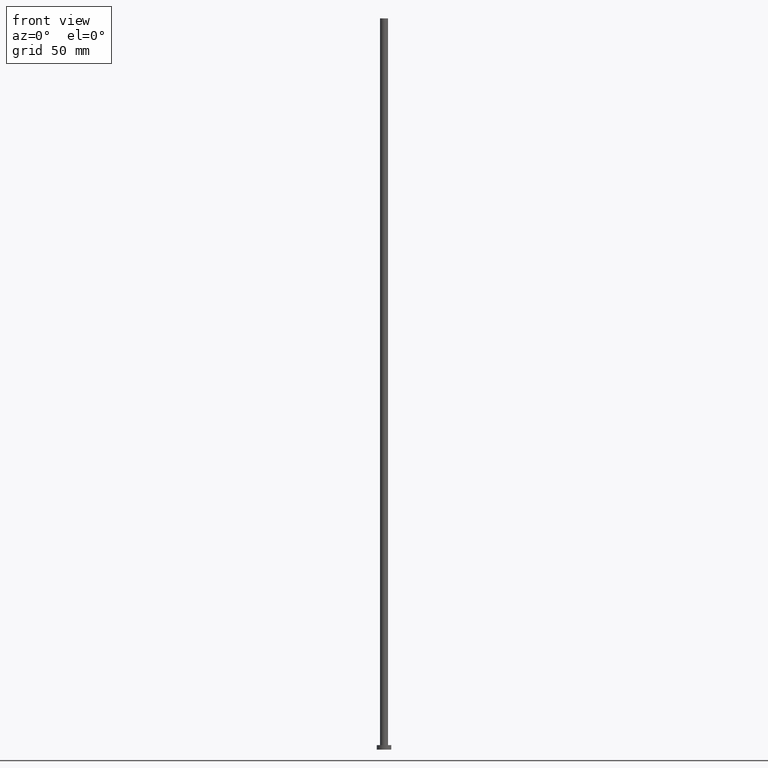
[diagram: clean part render]
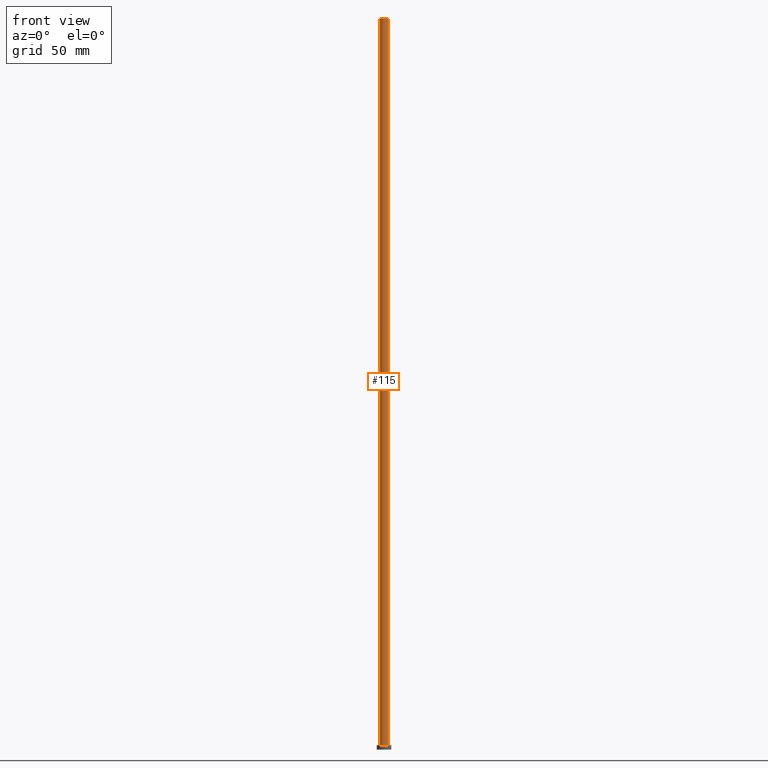
[diagram: same view with one face highlighted and labeled with its STEP entity id]
A machine part, front view. The second image highlights one B-rep face of the part: STEP entity #115.
In plain terms, the highlighted cylindrical surface (edge-blend (fillet) strip) has radius 2.75 mm, axis along (-0, -0, -1).
Its self-contained STEP definition (entity closure, byte-faithful):
#4 = DIRECTION ( 'NONE',  ( 0.000000000000000000, 0.000000000000000000, 1.000000000000000000 ) ) ;
#6 = VERTEX_POINT ( 'NONE', #249 ) ;
#11 = EDGE_CURVE ( 'NONE', #70, #6, #138, .T. ) ;
#14 = CARTESIAN_POINT ( 'NONE',  ( 2.750000000000000000, 3.367778697655220519E-16, 500.0000000000000000 ) ) ;
#15 = DIRECTION ( 'NONE',  ( -0.000000000000000000, -0.000000000000000000, -1.000000000000000000 ) ) ;
#21 = FACE_OUTER_BOUND ( 'NONE', #175, .T. ) ;
#26 = CARTESIAN_POINT ( 'NONE',  ( 0.000000000000000000, 0.000000000000000000, 500.0000000000000000 ) ) ;
#51 = ORIENTED_EDGE ( 'NONE', *, *, #188, .T. ) ;
#59 = LINE ( 'NONE', #14, #207 ) ;
#68 = EDGE_CURVE ( 'NONE', #230, #99, #160, .T. ) ;
#70 = VERTEX_POINT ( 'NONE', #195 ) ;
#71 = CARTESIAN_POINT ( 'NONE',  ( 2.750000000000000000, 3.367778697655220519E-16, 500.0000000000000000 ) ) ;
#87 = ORIENTED_EDGE ( 'NONE', *, *, #68, .F. ) ;
#92 = CARTESIAN_POINT ( 'NONE',  ( 0.000000000000000000, 0.000000000000000000, 500.0000000000000000 ) ) ;
#95 = ORIENTED_EDGE ( 'NONE', *, *, #199, .F. ) ;
#98 = DIRECTION ( 'NONE',  ( -0.000000000000000000, -0.000000000000000000, -1.000000000000000000 ) ) ;
#99 = VERTEX_POINT ( 'NONE', #71 ) ;
#115 = ADVANCED_FACE ( 'NONE', ( #21 ), #218, .T. ) ;
#119 = DIRECTION ( 'NONE',  ( -1.000000000000000000, 0.000000000000000000, 0.000000000000000000 ) ) ;
#138 = CIRCLE ( 'NONE', #197, 2.750000000000000000 ) ;
#151 = AXIS2_PLACEMENT_3D ( 'NONE', #26, #98, #119 ) ;
#153 = DIRECTION ( 'NONE',  ( 1.000000000000000000, 0.000000000000000000, 0.000000000000000000 ) ) ;
#160 = CIRCLE ( 'NONE', #244, 2.750000000000000000 ) ;
#163 = ORIENTED_EDGE ( 'NONE', *, *, #11, .T. ) ;
#175 = EDGE_LOOP ( 'NONE', ( #95, #87, #51, #163 ) ) ;
#179 = DIRECTION ( 'NONE',  ( 1.000000000000000000, 0.000000000000000000, 0.000000000000000000 ) ) ;
#182 = LINE ( 'NONE', #212, #196 ) ;
#188 = EDGE_CURVE ( 'NONE', #230, #70, #182, .T. ) ;
#192 = CARTESIAN_POINT ( 'NONE',  ( 0.000000000000000000, 0.000000000000000000, 3.000000000000000000 ) ) ;
#195 = CARTESIAN_POINT ( 'NONE',  ( -2.750000000000000000, 0.000000000000000000, 3.000000000000000000 ) ) ;
#196 = VECTOR ( 'NONE', #198, 1000.000000000000000 ) ;
#197 = AXIS2_PLACEMENT_3D ( 'NONE', #192, #4, #153 ) ;
#198 = DIRECTION ( 'NONE',  ( -0.000000000000000000, -0.000000000000000000, -1.000000000000000000 ) ) ;
#199 = EDGE_CURVE ( 'NONE', #99, #6, #59, .T. ) ;
#207 = VECTOR ( 'NONE', #15, 1000.000000000000000 ) ;
#209 = DIRECTION ( 'NONE',  ( 0.000000000000000000, 0.000000000000000000, 1.000000000000000000 ) ) ;
#212 = CARTESIAN_POINT ( 'NONE',  ( -2.750000000000000000, 0.000000000000000000, 500.0000000000000000 ) ) ;
#218 = CYLINDRICAL_SURFACE ( 'NONE', #151, 2.750000000000000000 ) ;
#230 = VERTEX_POINT ( 'NONE', #246 ) ;
#244 = AXIS2_PLACEMENT_3D ( 'NONE', #92, #209, #179 ) ;
#246 = CARTESIAN_POINT ( 'NONE',  ( -2.750000000000000000, 0.000000000000000000, 500.0000000000000000 ) ) ;
#249 = CARTESIAN_POINT ( 'NONE',  ( 2.750000000000000000, 3.367778697655220519E-16, 3.000000000000000000 ) ) ;